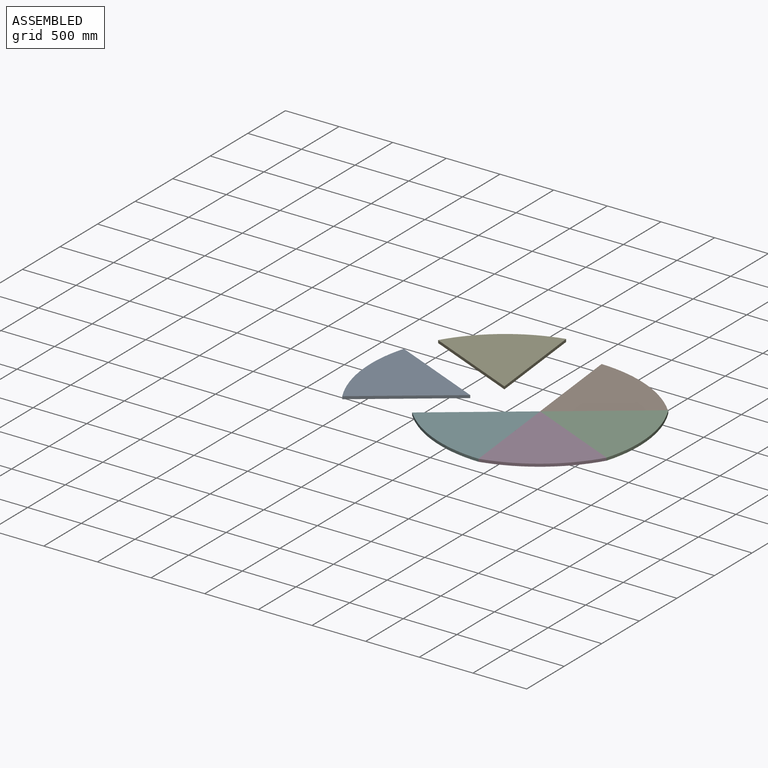
[diagram: assembled view]
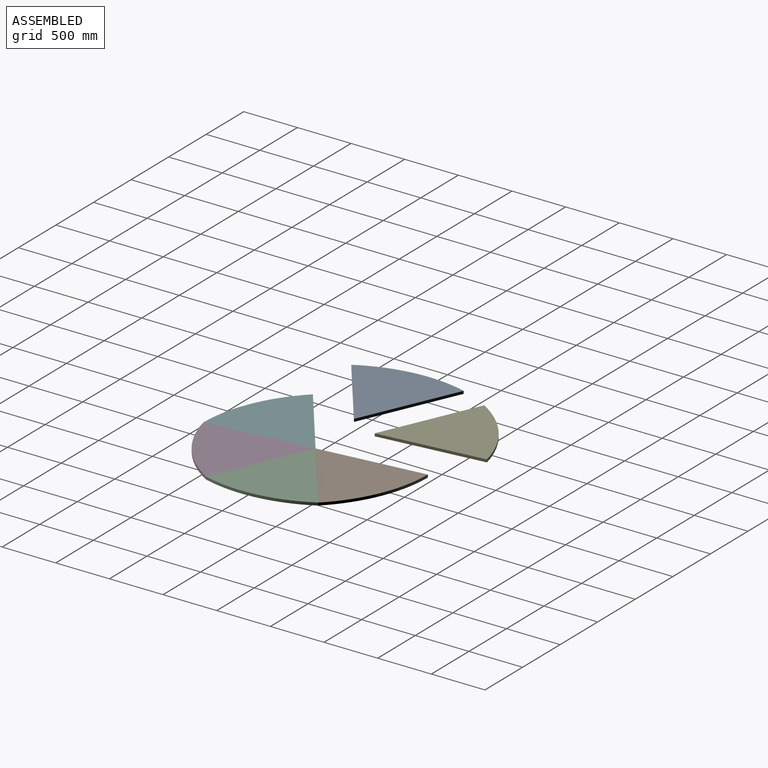
[diagram: assembled view, second angle]
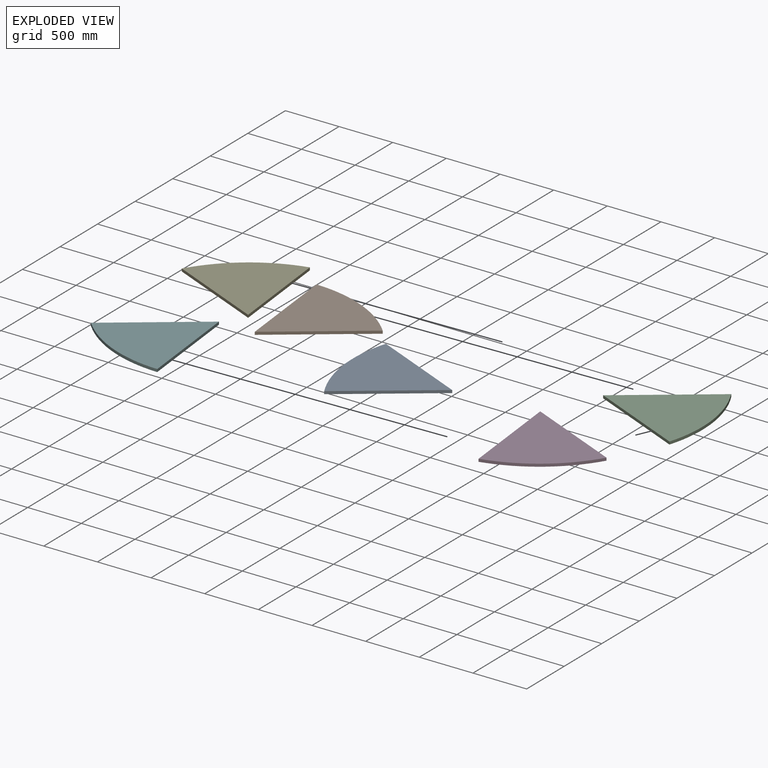
[diagram: exploded view]
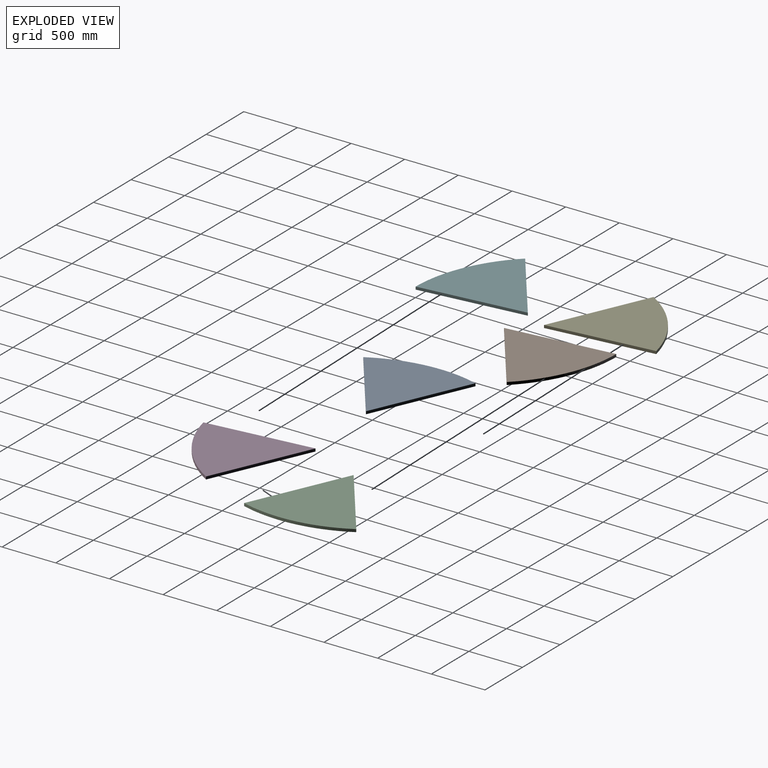
[diagram: exploded view, second angle]
ASSEMBLY  parts=6 mates=2
PART A: 5 faces, bbox 894.4x972x25.4 mm
  f0: plane 789.05x577.26mm, normal (0.59,-0.81,0), area 24832.8mm2, adj f1,f2,f3,f4
  f1: cylinder r=1250.95mm len=894.45mm, axis (0,0,-1), area 25512.6mm2, adj f0,f2,f3,f4
  f2: plane 971.97x105.39mm, normal (-0.99,-0.11,0), area 24832.8mm2, adj f0,f1,f3,f4
  f3: plane 971.97x894.45mm, normal (0,0,1), area 479251mm2, adj f0,f1,f2
  f4: plane 971.97x894.45mm, normal (0,0,-1), area 479251mm2, adj f0,f1,f2
PART B: same geometry as A
PART C: same geometry as A
PART D: same geometry as A
PART E: same geometry as A
PART F: same geometry as A
PLACE A rot(axis=(0,0,1),120deg) t=(0,0,0)mm
PLACE B t=(177.46,-247.07,-1.19)mm
PLACE C rot(axis=(0,0,-1),60deg) t=(0,0,0)mm
PLACE D rot(axis=(0,0,-1),120deg) t=(123.06,278.86,0)mm
PLACE E rot(axis=(0,0,1),60deg) t=(0,0,0)mm
PLACE F rot(axis=(0,0,1),180deg) t=(426.08,311.71,0)mm
MATE parallel F.f2 <-> D.f0  axis (0.99,0.11,0) through (355.72,-453.13,12.7)mm
MATE parallel D.f2 <-> C.f0  axis (0.4,0.91,0) through (750.25,-164.5,12.7)mm
